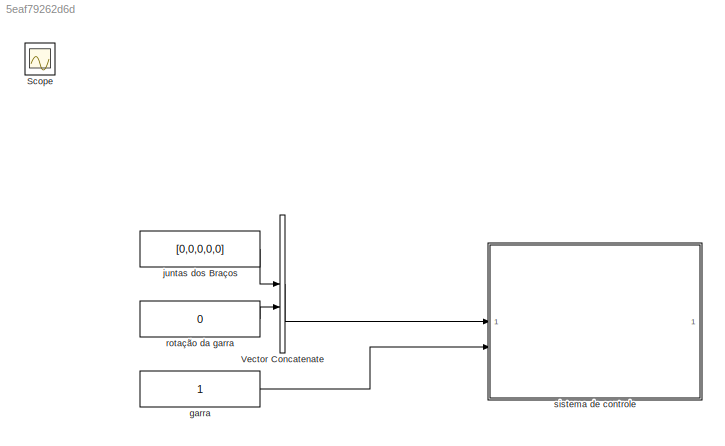
MODEL slx_5eaf79262d6d
KIND model
CONFIG AbsTol = auto
CONFIG EnableMultiTasking = off
CONFIG FixedStep = auto
CONFIG MaxStep = auto
CONFIG MinStep = auto
CONFIG RelTol = 1e-3
CONFIG SampleTimeConstraint = Unconstrained
CONFIG SolverName = FixedStepAuto
CONFIG StartTime = 0.0
CONFIG StopTime = 10.0
WORKSPACE source: mxarray member
WORKSPACE SL_ROS_VariableLengthArrays_MaxSizes: object (value not decoded)
BLOCK [Scope] Scope
  Floating = off
  IOType = viewer
  NumInputPorts = 1
  ScopeSpecificationString = Simulink.scopes.TimeScopeBlockCfg('CurrentConfiguration', extmgr.ConfigurationSet(extmgr.Configuration('Core','General UI',true),extmgr.Configuration('Core','Source UI',true),extmgr.Configuration('Sources','WiredSimulink',true),extmgr.Configuration('Visuals','Time Domain',true,'SerializedDisplays',{struct('MinYLimReal','-10.00000','MaxYLimReal','10.00000','YLabelReal','','MinYLimMag','0.00000','Ma...<+1415ch>
BLOCK [Concatenate] Vector Concatenate
BLOCK [Constant] garra
BLOCK [Constant] juntas dos Braços
  Value = [0,0,0,0,0]
BLOCK [Constant] rotação da garra
  Value = 0
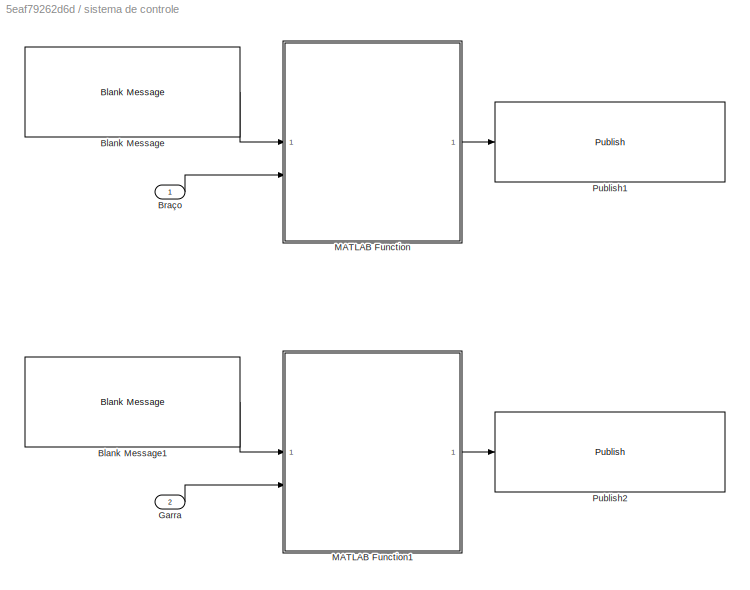
BLOCK [SubSystem] sistema de controle
BLOCK [Reference] sistema de controle/Blank Message  REF=robotlib/Blank Message
  SourceBlock = robotlib/Blank Message
  SourceType = ROS Blank Message
BLOCK [Reference] sistema de controle/Blank Message1  REF=robotlib/Blank Message
  SourceBlock = robotlib/Blank Message
  SourceType = ROS Blank Message
BLOCK [Inport] sistema de controle/Braço
BLOCK [Inport] sistema de controle/Garra
  Port = 2
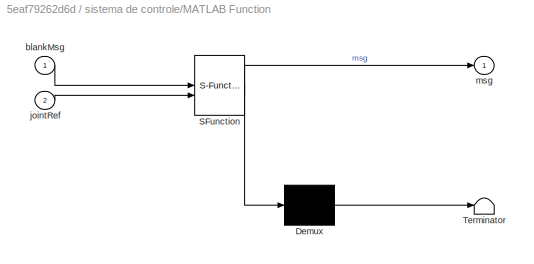
BLOCK [SubSystem] sistema de controle/MATLAB Function
  ErrorFcn = Stateflow.Translate.translate
  PermitHierarchicalResolution = ExplicitOnly
  SFBlockType = MATLAB Function
  TreatAsAtomicUnit = on
BLOCK [Demux] sistema de controle/MATLAB Function/ Demux 
  Outputs = 1
BLOCK [S-Function] sistema de controle/MATLAB Function/ SFunction 
  EnableBusSupport = on
  FunctionName = sf_sfun
  PortCounts = [2 2]
  SFcnIsStateOwnerBlock = off
  SFunctionDeploymentMode = off
  Tag = Stateflow S-Function 2
BLOCK [Terminator] sistema de controle/MATLAB Function/ Terminator 
BLOCK [Inport] sistema de controle/MATLAB Function/blankMsg
BLOCK [Inport] sistema de controle/MATLAB Function/jointRef
  Port = 2
BLOCK [Outport] sistema de controle/MATLAB Function/msg
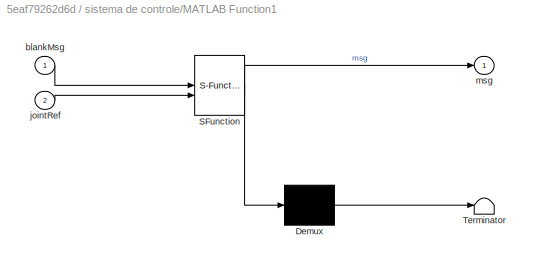
BLOCK [SubSystem] sistema de controle/MATLAB Function1
  ErrorFcn = Stateflow.Translate.translate
  PermitHierarchicalResolution = ExplicitOnly
  SFBlockType = MATLAB Function
  TreatAsAtomicUnit = on
BLOCK [Demux] sistema de controle/MATLAB Function1/ Demux 
  Outputs = 1
BLOCK [S-Function] sistema de controle/MATLAB Function1/ SFunction 
  EnableBusSupport = on
  FunctionName = sf_sfun
  PortCounts = [2 2]
  SFcnIsStateOwnerBlock = off
  SFunctionDeploymentMode = off
  Tag = Stateflow S-Function 1
BLOCK [Terminator] sistema de controle/MATLAB Function1/ Terminator 
BLOCK [Inport] sistema de controle/MATLAB Function1/blankMsg
BLOCK [Inport] sistema de controle/MATLAB Function1/jointRef
  Port = 2
BLOCK [Outport] sistema de controle/MATLAB Function1/msg
BLOCK [Reference] sistema de controle/Publish1  REF=robotlib/Publish
  SourceBlock = robotlib/Publish
  SourceType = ROS Publish
BLOCK [Reference] sistema de controle/Publish2  REF=robotlib/Publish
  SourceBlock = robotlib/Publish
  SourceType = ROS Publish
LINE Vector Concatenate:1 -> sistema de controle:1
LINE garra:1 -> sistema de controle:2
LINE juntas dos Braços:1 -> Vector Concatenate:1
LINE rotação da garra:1 -> Vector Concatenate:2
LINE sistema de controle/Blank Message1:1 -> sistema de controle/MATLAB Function1:1
LINE sistema de controle/Blank Message:1 -> sistema de controle/MATLAB Function:1
LINE sistema de controle/Braço:1 -> sistema de controle/MATLAB Function:2
LINE sistema de controle/Garra:1 -> sistema de controle/MATLAB Function1:2
LINE sistema de controle/MATLAB Function1:1 -> sistema de controle/Publish2:1
LINE sistema de controle/MATLAB Function:1 -> sistema de controle/Publish1:1
CHART sistema de controle/MATLAB Function1 states=1 transitions=1
  STATE_LABEL 'eML_blk_kernel()'
  STATE_LABEL "SCRIPT:\nfunction msg = packageTrajectory(blankMsg, jointRef)\n\n    msg = blankMsg;\n\n    \n    numJoints = uint32(1);\n    msg.JointNames_SL_Info.CurrentLength = numJoints;\n\n  \n    name = 'robotiq_85_left_knuckle_joint';\n    msg.JointNames(1).Data(1:length(name)) = uint8(name);\n    msg.JointNames(1).Data_SL_Info.CurrentLength = uint32(length(name));\n\n    msg.Points_SL_Info.CurrentLength = uint32(1);\n\n...<+833ch>"
CHART sistema de controle/MATLAB Function states=1 transitions=1
  STATE_LABEL 'eML_blk_kernel()'
  STATE_LABEL "SCRIPT:\nfunction msg = packageTrajectory(blankMsg, jointRef)\n\n    msg = blankMsg;\n\nmsg.JointNames_SL_Info.CurrentLength = uint32(6);\n\nmsg.JointNames(1).Data_SL_Info.CurrentLength = uint32(18);\nmsg.JointNames(1).Data(1:18) = uint8('shoulder_pan_joint')';\nmsg.JointNames(2).Data_SL_Info.CurrentLength = uint32(19);\nmsg.JointNames(2).Data(1:19) = uint8('shoulder_lift_joint')';\nmsg.JointNames(3).Data_SL...<+1341ch>"
CHART  states=0 transitions=0
CHART  states=0 transitions=0
